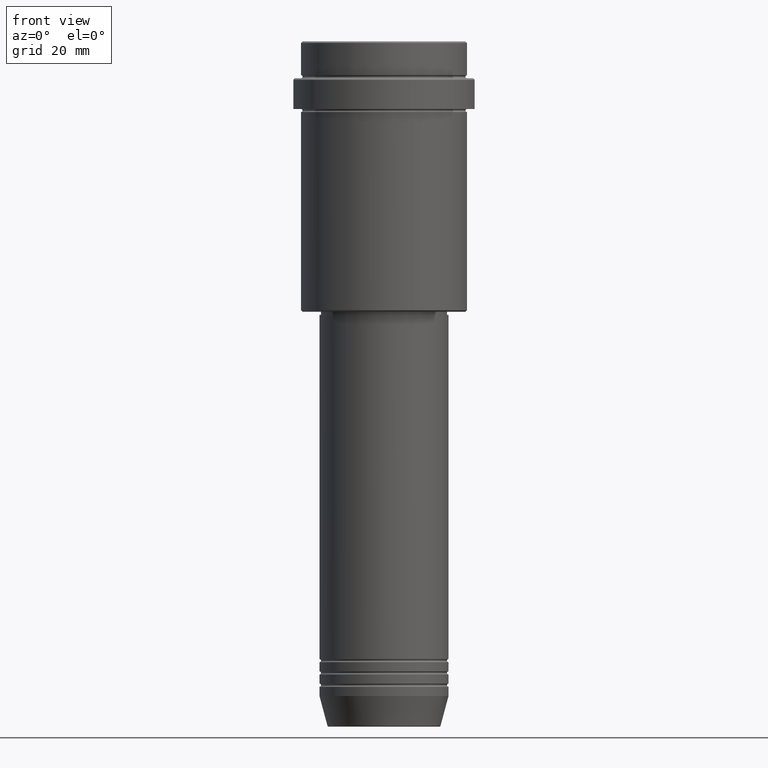
[diagram: clean part render]
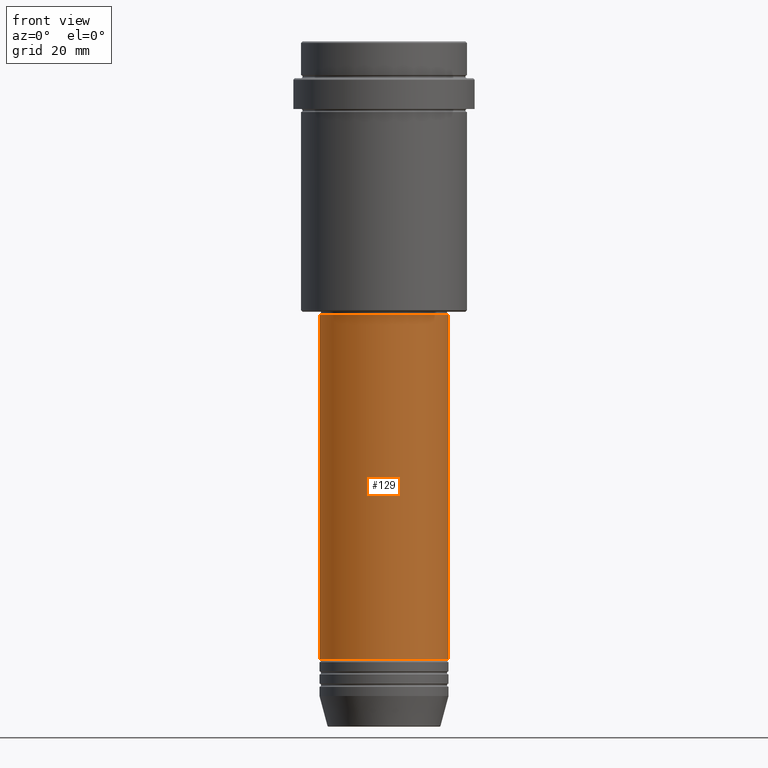
[diagram: same view with one face highlighted and labeled with its STEP entity id]
A machine part, front view. The second image highlights one B-rep face of the part: STEP entity #129.
In plain terms, the highlighted cylindrical surface (partial cylindrical patch) has radius 21 mm, axis along (-0, -0, 1).
Its self-contained STEP definition (entity closure, byte-faithful):
#3 = DIRECTION ( 'NONE',  ( 1.000000000000000000, 0.000000000000000000, 0.000000000000000000 ) ) ;
#23 = LINE ( 'NONE', #457, #657 ) ;
#61 = CIRCLE ( 'NONE', #868, 21.00000000000000000 ) ;
#65 = EDGE_LOOP ( 'NONE', ( #1246, #1304, #1057, #624 ) ) ;
#129 = ADVANCED_FACE ( 'NONE', ( #253 ), #1160, .T. ) ;
#144 = CARTESIAN_POINT ( 'NONE',  ( 21.00000000000000000, 0.000000000000000000, -89.00000000000002842 ) ) ;
#158 = CARTESIAN_POINT ( 'NONE',  ( 0.000000000000000000, 0.000000000000000000, 0.000000000000000000 ) ) ;
#229 = CARTESIAN_POINT ( 'NONE',  ( 0.000000000000000000, 0.000000000000000000, -200.9999999999999147 ) ) ;
#253 = FACE_OUTER_BOUND ( 'NONE', #65, .T. ) ;
#327 = DIRECTION ( 'NONE',  ( -0.000000000000000000, -0.000000000000000000, 1.000000000000000000 ) ) ;
#329 = CARTESIAN_POINT ( 'NONE',  ( 0.000000000000000000, 0.000000000000000000, -89.00000000000002842 ) ) ;
#404 = EDGE_CURVE ( 'NONE', #1307, #1290, #764, .T. ) ;
#420 = VECTOR ( 'NONE', #772, 1000.000000000000000 ) ;
#435 = CARTESIAN_POINT ( 'NONE',  ( 21.00000000000000000, 0.000000000000000000, 0.000000000000000000 ) ) ;
#438 = EDGE_CURVE ( 'NONE', #966, #532, #23, .T. ) ;
#455 = EDGE_CURVE ( 'NONE', #532, #1290, #61, .T. ) ;
#457 = CARTESIAN_POINT ( 'NONE',  ( -21.00000000000000000, 2.571758278209441661E-15, 0.000000000000000000 ) ) ;
#532 = VERTEX_POINT ( 'NONE', #1116 ) ;
#570 = CARTESIAN_POINT ( 'NONE',  ( 21.00000000000000000, 0.000000000000000000, -200.9999999999999147 ) ) ;
#589 = CIRCLE ( 'NONE', #1053, 21.00000000000000000 ) ;
#594 = CARTESIAN_POINT ( 'NONE',  ( -21.00000000000000000, 2.571758278209441661E-15, -200.9999999999999147 ) ) ;
#624 = ORIENTED_EDGE ( 'NONE', *, *, #455, .F. ) ;
#657 = VECTOR ( 'NONE', #1332, 1000.000000000000000 ) ;
#764 = LINE ( 'NONE', #435, #420 ) ;
#767 = DIRECTION ( 'NONE',  ( 1.000000000000000000, 0.000000000000000000, 0.000000000000000000 ) ) ;
#772 = DIRECTION ( 'NONE',  ( -0.000000000000000000, -0.000000000000000000, 1.000000000000000000 ) ) ;
#868 = AXIS2_PLACEMENT_3D ( 'NONE', #329, #1405, #3 ) ;
#966 = VERTEX_POINT ( 'NONE', #594 ) ;
#1053 = AXIS2_PLACEMENT_3D ( 'NONE', #229, #327, #767 ) ;
#1057 = ORIENTED_EDGE ( 'NONE', *, *, #404, .T. ) ;
#1091 = AXIS2_PLACEMENT_3D ( 'NONE', #158, #1356, #1381 ) ;
#1116 = CARTESIAN_POINT ( 'NONE',  ( -21.00000000000000000, 2.571758278209441661E-15, -89.00000000000002842 ) ) ;
#1160 = CYLINDRICAL_SURFACE ( 'NONE', #1091, 21.00000000000000000 ) ;
#1237 = EDGE_CURVE ( 'NONE', #966, #1307, #589, .T. ) ;
#1246 = ORIENTED_EDGE ( 'NONE', *, *, #438, .F. ) ;
#1290 = VERTEX_POINT ( 'NONE', #144 ) ;
#1304 = ORIENTED_EDGE ( 'NONE', *, *, #1237, .T. ) ;
#1307 = VERTEX_POINT ( 'NONE', #570 ) ;
#1332 = DIRECTION ( 'NONE',  ( -0.000000000000000000, -0.000000000000000000, 1.000000000000000000 ) ) ;
#1356 = DIRECTION ( 'NONE',  ( -0.000000000000000000, -0.000000000000000000, 1.000000000000000000 ) ) ;
#1381 = DIRECTION ( 'NONE',  ( 1.000000000000000000, 0.000000000000000000, 0.000000000000000000 ) ) ;
#1405 = DIRECTION ( 'NONE',  ( -0.000000000000000000, -0.000000000000000000, 1.000000000000000000 ) ) ;